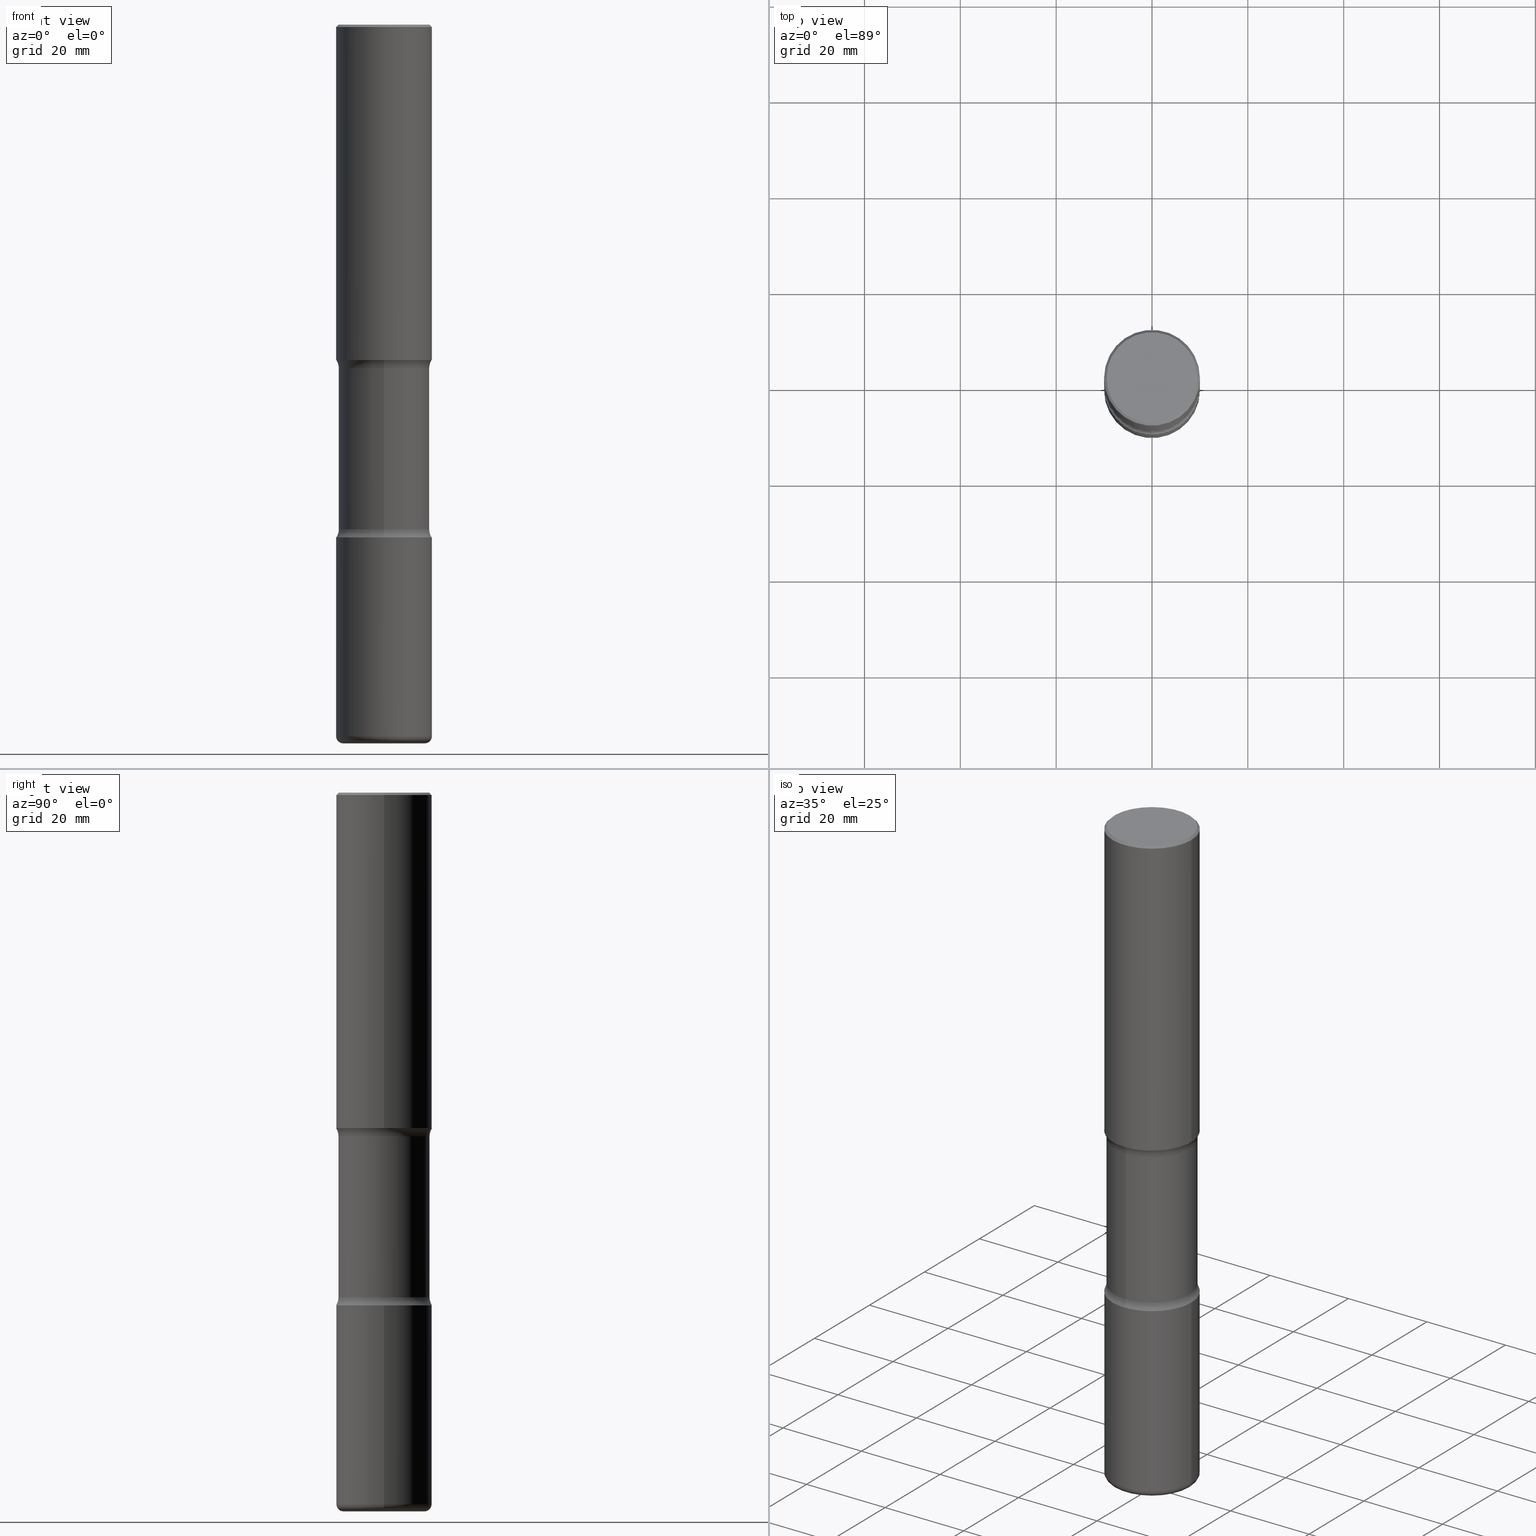
[diagram: canonical four-view strip — front | top / right | iso, engineering-drawing reading convention]
A machine part, canonical four-view strip (front | top / right | iso — engineering-drawing reading convention). The complete STEP part file that produces these views, byte-faithful:
ISO-10303-21;
HEADER;
FILE_DESCRIPTION (( 'STEP AP203' ),
    '1' );
FILE_NAME ('47746.STEP',
    '2024-03-02T08:24:06',
    ( '' ),
    ( '' ),
    'SwSTEP 2.0',
    'SolidWorks 2023',
    '' );
FILE_SCHEMA (( 'CONFIG_CONTROL_DESIGN' ));
ENDSEC;

DATA;
#1 = FACE_OUTER_BOUND ( 'NONE', #432, .T. ) ;
#2 = ORIENTED_EDGE ( 'NONE', *, *, #337, .T. ) ;
#3 = CARTESIAN_POINT ( 'NONE',  ( 1.444171603492631822E-28, -2.061894304653818881E-14, -5.905499999999998195 ) ) ;
#4 = EDGE_CURVE ( 'NONE', #389, #90, #452, .T. ) ;
#5 = DIRECTION ( 'NONE',  ( 1.000000000000000000, -6.982962677686266711E-15, 4.876176775795935793E-29 ) ) ;
#6 = VERTEX_POINT ( 'NONE', #187 ) ;
#7 = AXIS2_PLACEMENT_3D ( 'NONE', #374, #75, #71 ) ;
#8 = AXIS2_PLACEMENT_3D ( 'NONE', #256, #15, #366 ) ;
#9 = DIRECTION ( 'NONE',  ( 6.982962677686266711E-15, 1.000000000000000000, -2.921762560068729411E-15 ) ) ;
#10 = ORIENTED_EDGE ( 'NONE', *, *, #396, .T. ) ;
#11 = CARTESIAN_POINT ( 'NONE',  ( -2.633402156444536217E-15, -0.3740000000000101577, -2.823256588393413313 ) ) ;
#12 = EDGE_LOOP ( 'NONE', ( #23, #311, #248, #176 ) ) ;
#13 = ADVANCED_FACE ( 'NONE', ( #442 ), #178, .T. ) ;
#14 = ADVANCED_FACE ( 'NONE', ( #547 ), #172, .T. ) ;
#15 = DIRECTION ( 'NONE',  ( -2.445468806185136597E-29, 3.491481338843145583E-15, 1.000000000000000000 ) ) ;
#16 = ORIENTED_EDGE ( 'NONE', *, *, #285, .F. ) ;
#17 = AXIS2_PLACEMENT_3D ( 'NONE', #155, #196, #458 ) ;
#18 = AXIS2_PLACEMENT_3D ( 'NONE', #405, #22, #51 ) ;
#19 = DIRECTION ( 'NONE',  ( -6.982962677686264344E-15, -1.000000000000000000, 0.000000000000000000 ) ) ;
#20 = VERTEX_POINT ( 'NONE', #279 ) ;
#21 = EDGE_CURVE ( 'NONE', #106, #257, #94, .T. ) ;
#22 = DIRECTION ( 'NONE',  ( 2.499563752616943710E-29, -3.414014296659653741E-15, -1.000000000000000000 ) ) ;
#23 = ORIENTED_EDGE ( 'NONE', *, *, #87, .F. ) ;
#24 = FACE_OUTER_BOUND ( 'NONE', #264, .T. ) ;
#25 = DIRECTION ( 'NONE',  ( -2.445468806185136877E-29, 3.491481338843145188E-15, 1.000000000000000000 ) ) ;
#26 = CONICAL_SURFACE ( 'NONE', #430, 0.3936999999999999389, 0.7853981633974471688 ) ;
#27 = FACE_OUTER_BOUND ( 'NONE', #12, .T. ) ;
#28 = DIRECTION ( 'NONE',  ( 6.982962677686265922E-15, 1.000000000000000000, -3.414014296659653741E-15 ) ) ;
#29 = CARTESIAN_POINT ( 'NONE',  ( 2.609533152651356620E-15, 0.3736999999999999211, -1.300498063835582814E-15 ) ) ;
#30 = APPROVAL ( #149, 'UNSPECIFIED' ) ;
#31 = APPLICATION_PROTOCOL_DEFINITION ( 'international standard', 'config_control_design', 1994, #230 ) ;
#32 = CARTESIAN_POINT ( 'NONE',  ( -2.633402156444500718E-15, -0.3740000000000146541, -4.145243411606582384 ) ) ;
#33 = AXIS2_PLACEMENT_3D ( 'NONE', #297, #480, #252 ) ;
#34 = VECTOR ( 'NONE', #220, 39.37007874015748143 ) ;
#35 = COORDINATED_UNIVERSAL_TIME_OFFSET ( 5, 0, .BEHIND. ) ;
#36 = CARTESIAN_POINT ( 'NONE',  ( 0.3936999999999999389, -2.770807688499514945E-15, -0.02000000000000010103 ) ) ;
#37 = DIRECTION ( 'NONE',  ( 6.982962677686266711E-15, 1.000000000000000000, -2.921762560068729411E-15 ) ) ;
#38 = VERTEX_POINT ( 'NONE', #115 ) ;
#39 = DIRECTION ( 'NONE',  ( -1.000000000000000000, 6.982962677686265922E-15, -4.883557194083112340E-29 ) ) ;
#40 = CIRCLE ( 'NONE', #438, 0.3936999999999999389 ) ;
#41 = ORIENTED_EDGE ( 'NONE', *, *, #364, .T. ) ;
#42 = CC_DESIGN_APPROVAL ( #30, ( #165 ) ) ;
#43 = APPROVAL_DATE_TIME ( #88, #368 ) ;
#44 = DIRECTION ( 'NONE',  ( 2.438088387897960049E-29, -3.491481338843145188E-15, -1.000000000000000000 ) ) ;
#45 = EDGE_LOOP ( 'NONE', ( #145, #537, #223, #216 ) ) ;
#46 = CC_DESIGN_DATE_AND_TIME_ASSIGNMENT ( #474, #344, ( #104 ) ) ;
#47 = FACE_OUTER_BOUND ( 'NONE', #360, .T. ) ;
#48 = ORIENTED_EDGE ( 'NONE', *, *, #73, .F. ) ;
#49 = DIRECTION ( 'NONE',  ( 2.445468806185136597E-29, -3.491481338843145583E-15, -1.000000000000000000 ) ) ;
#50 = AXIS2_PLACEMENT_3D ( 'NONE', #534, #397, #445 ) ;
#51 = DIRECTION ( 'NONE',  ( 6.982962677686266711E-15, 1.000000000000000000, -2.921762560068729411E-15 ) ) ;
#52 = EDGE_CURVE ( 'NONE', #106, #219, #553, .T. ) ;
#53 = ORIENTED_EDGE ( 'NONE', *, *, #234, .T. ) ;
#54 = CARTESIAN_POINT ( 'NONE',  ( 0.3937000000000003830, -2.749192406205085978E-15, 1.919750796630861853E-29 ) ) ;
#55 = ORIENTED_EDGE ( 'NONE', *, *, #300, .T. ) ;
#56 = DIRECTION ( 'NONE',  ( 1.000000000000000000, -6.982962677686265133E-15, 0.000000000000000000 ) ) ;
#57 = VERTEX_POINT ( 'NONE', #70 ) ;
#58 = AXIS2_PLACEMENT_3D ( 'NONE', #339, #431, #247 ) ;
#59 = LOCAL_TIME ( 3, 24, 6.000000000000000000, #293 ) ;
#60 = LINE ( 'NONE', #310, #268 ) ;
#61 = CARTESIAN_POINT ( 'NONE',  ( -2.565826251166408560E-15, -0.3740000000000206493, -5.905499999999997307 ) ) ;
#62 = CARTESIAN_POINT ( 'NONE',  ( 1.429718882848077913E-28, -2.041259649941256157E-14, -5.846399999999999153 ) ) ;
#63 = ADVANCED_FACE ( 'NONE', ( #282 ), #428, .F. ) ;
#64 = ORIENTED_EDGE ( 'NONE', *, *, #447, .F. ) ;
#65 = DATE_AND_TIME ( #408, #69 ) ;
#66 = CARTESIAN_POINT ( 'NONE',  ( 6.739467482965614869E-29, -9.622173421717819657E-15, -2.755899999999998240 ) ) ;
#67 = AXIS2_PLACEMENT_3D ( 'NONE', #3, #44, #127 ) ;
#68 = DIRECTION ( 'NONE',  ( 0.7071067811865466846, -7.319954787623252890E-15, -0.7071067811865483499 ) ) ;
#69 = LOCAL_TIME ( 3, 24, 6.000000000000000000, #454 ) ;
#70 = CARTESIAN_POINT ( 'NONE',  ( -0.3937000000000003830, -1.761518974872504126E-14, -5.846399999999999153 ) ) ;
#71 = DIRECTION ( 'NONE',  ( -1.000000000000000000, 6.982962677686266711E-15, 0.000000000000000000 ) ) ;
#72 = CARTESIAN_POINT ( 'NONE',  ( -0.3736999999999999211, 2.644447966039788269E-15, 8.537024980182450727E-18 ) ) ;
#73 = EDGE_CURVE ( 'NONE', #304, #20, #181, .T. ) ;
#74 = CALENDAR_DATE ( 2024, 2, 3 ) ;
#75 = DIRECTION ( 'NONE',  ( 2.445468806185136597E-29, -3.491481338843145583E-15, -1.000000000000000000 ) ) ;
#76 = AXIS2_PLACEMENT_3D ( 'NONE', #62, #114, #147 ) ;
#77 = PERSON_AND_ORGANIZATION ( #100, #350 ) ;
#78 = DIRECTION ( 'NONE',  ( 6.982962677686265922E-15, 1.000000000000000000, -2.775563112689113540E-15 ) ) ;
#79 = EDGE_LOOP ( 'NONE', ( #140, #2 ) ) ;
#80 = CARTESIAN_POINT ( 'NONE',  ( 3.484498376165515577E-15, 0.4989999999999901736, -2.823256588393415534 ) ) ;
#81 = VERTEX_POINT ( 'NONE', #322 ) ;
#82 = APPROVAL_DATE_TIME ( #202, #273 ) ;
#83 = FACE_OUTER_BOUND ( 'NONE', #173, .T. ) ;
#84 = CLOSED_SHELL ( 'NONE', ( #472, #171, #305, #435, #543, #347, #63, #156 ) ) ;
#85 = ORIENTED_EDGE ( 'NONE', *, *, #354, .F. ) ;
#86 = AXIS2_PLACEMENT_3D ( 'NONE', #414, #318, #28 ) ;
#87 = EDGE_CURVE ( 'NONE', #251, #299, #206, .T. ) ;
#88 = DATE_AND_TIME ( #425, #208 ) ;
#89 = DIRECTION ( 'NONE',  ( 1.000000000000000000, -6.982962677686295110E-15, 0.000000000000000000 ) ) ;
#90 = VERTEX_POINT ( 'NONE', #32 ) ;
#91 = CARTESIAN_POINT ( 'NONE',  ( 1.444171603492631822E-28, -2.061894304653818881E-14, -5.905499999999998195 ) ) ;
#92 = CARTESIAN_POINT ( 'NONE',  ( 6.856494937320590076E-29, -9.925643892983175518E-15, -2.823256588393414201 ) ) ;
#93 = ORIENTED_EDGE ( 'NONE', *, *, #524, .F. ) ;
#94 = CIRCLE ( 'NONE', #307, 0.3937000000000002164 ) ;
#95 = AXIS2_PLACEMENT_3D ( 'NONE', #382, #319, #274 ) ;
#96 = AXIS2_PLACEMENT_3D ( 'NONE', #270, #329, #546 ) ;
#97 = CARTESIAN_POINT ( 'NONE',  ( -3.423388500887925735E-15, -0.4990000000000099356, -2.823256588393412425 ) ) ;
#98 = ORIENTED_EDGE ( 'NONE', *, *, #324, .F. ) ;
#99 = EDGE_LOOP ( 'NONE', ( #367, #253, #295, #470 ) ) ;
#100 = PERSON ( 'UNSPECIFIED', 'UNSPECIFIED', 'UNSPECIFIED', ('UNSPECIFIED'), ('UNSPECIFIED'), ('UNSPECIFIED') ) ;
#101 = DIRECTION ( 'NONE',  ( 2.499563752616943710E-29, -3.414014296659653741E-15, -1.000000000000000000 ) ) ;
#102 = VERTEX_POINT ( 'NONE', #72 ) ;
#103 = CC_DESIGN_PERSON_AND_ORGANIZATION_ASSIGNMENT ( #77, #471, ( #104 ) ) ;
#104 = SECURITY_CLASSIFICATION ( '', '', #283 ) ;
#105 = CARTESIAN_POINT ( 'NONE',  ( 0.3936999999999999389, -2.770807688499514945E-15, -0.02000000000000010103 ) ) ;
#106 = VERTEX_POINT ( 'NONE', #276 ) ;
#107 = CARTESIAN_POINT ( 'NONE',  ( 1.013706345712835491E-28, -1.447304001658688186E-14, -4.145243411606583273 ) ) ;
#108 = DIRECTION ( 'NONE',  ( 6.982962677686265922E-15, 1.000000000000000000, -2.775563112689113540E-15 ) ) ;
#109 = EDGE_CURVE ( 'NONE', #38, #6, #411, .T. ) ;
#110 = CIRCLE ( 'NONE', #267, 0.05909999999999972220 ) ;
#111 =( NAMED_UNIT ( * ) PLANE_ANGLE_UNIT ( ) SI_UNIT ( $, .RADIAN. ) );
#112 = AXIS2_PLACEMENT_3D ( 'NONE', #436, #179, #222 ) ;
#113 = DIRECTION ( 'NONE',  ( 6.982962677686266711E-15, 1.000000000000000000, -2.921762560068729411E-15 ) ) ;
#114 = DIRECTION ( 'NONE',  ( -2.445468806185136597E-29, 3.491481338843145583E-15, 1.000000000000000000 ) ) ;
#115 = CARTESIAN_POINT ( 'NONE',  ( -2.700978061722587749E-15, -0.3937000000000100419, -2.755899999999997352 ) ) ;
#116 = APPROVAL_STATUS ( 'not_yet_approved' ) ;
#117 = DIRECTION ( 'NONE',  ( 1.000000000000000000, -6.982962677686266711E-15, 0.000000000000000000 ) ) ;
#118 = VECTOR ( 'NONE', #212, 39.37007874015748143 ) ;
#119 = AXIS2_PLACEMENT_3D ( 'NONE', #312, #486, #56 ) ;
#120 = EDGE_LOOP ( 'NONE', ( #245, #535, #122, #490 ) ) ;
#121 = CARTESIAN_POINT ( 'NONE',  ( 1.030178189293550378E-28, -1.470821428801063089E-14, -4.212599999999998346 ) ) ;
#122 = ORIENTED_EDGE ( 'NONE', *, *, #324, .T. ) ;
#123 = PERSON_AND_ORGANIZATION_ROLE ( 'design_supplier' ) ;
#124 = CARTESIAN_POINT ( 'NONE',  ( -2.700978061722549884E-15, -0.3937000000000149269, -4.212599999999997458 ) ) ;
#125 = EDGE_CURVE ( 'NONE', #102, #126, #237, .T. ) ;
#126 = VERTEX_POINT ( 'NONE', #330 ) ;
#127 = DIRECTION ( 'NONE',  ( -1.000000000000000000, 6.982962677686265922E-15, -4.876176775795935793E-29 ) ) ;
#128 = AXIS2_PLACEMENT_3D ( 'NONE', #170, #469, #78 ) ;
#129 = EDGE_LOOP ( 'NONE', ( #558, #392 ) ) ;
#130 = AXIS2_PLACEMENT_3D ( 'NONE', #439, #265, #225 ) ;
#131 = LINE ( 'NONE', #385, #118 ) ;
#132 = LINE ( 'NONE', #54, #34 ) ;
#133 = ORIENTED_EDGE ( 'NONE', *, *, #52, .T. ) ;
#134 = CARTESIAN_POINT ( 'NONE',  ( 1.429718882848077913E-28, -2.041259649941256157E-14, -5.846399999999999153 ) ) ;
#135 = ORIENTED_EDGE ( 'NONE', *, *, #455, .F. ) ;
#136 = AXIS2_PLACEMENT_3D ( 'NONE', #29, #507, #154 ) ;
#137 = PRODUCT_DEFINITION_FORMATION_WITH_SPECIFIED_SOURCE ( 'ANY', '', #555, .NOT_KNOWN. ) ;
#138 = UNCERTAINTY_MEASURE_WITH_UNIT (LENGTH_MEASURE( 1.000000000000000082E-05 ), #460, 'distance_accuracy_value', 'NONE');
#139 = FACE_OUTER_BOUND ( 'NONE', #400, .T. ) ;
#140 = ORIENTED_EDGE ( 'NONE', *, *, #73, .T. ) ;
#141 = CARTESIAN_POINT ( 'NONE',  ( 3.484498376165549498E-15, 0.4989999999999857327, -4.145243411606585049 ) ) ;
#142 = ADVANCED_FACE ( 'NONE', ( #331 ), #410, .F. ) ;
#143 = ORIENTED_EDGE ( 'NONE', *, *, #232, .T. ) ;
#144 = DIRECTION ( 'NONE',  ( 1.000000000000000000, -6.982962677686269866E-15, 0.000000000000000000 ) ) ;
#145 = ORIENTED_EDGE ( 'NONE', *, *, #300, .F. ) ;
#146 = AXIS2_PLACEMENT_3D ( 'NONE', #498, #376, #272 ) ;
#147 = DIRECTION ( 'NONE',  ( 1.000000000000000000, -6.982962677686264344E-15, 4.883557194083112340E-29 ) ) ;
#148 = PLANE ( 'NONE',  #224 ) ;
#149 = APPROVAL_STATUS ( 'not_yet_approved' ) ;
#150 = DIRECTION ( 'NONE',  ( -2.445468806185136597E-29, 3.491481338843145583E-15, 1.000000000000000000 ) ) ;
#151 = DIMENSIONAL_EXPONENTS ( 1.000000000000000000, 0.000000000000000000, 0.000000000000000000, 0.000000000000000000, 0.000000000000000000, 0.000000000000000000, 0.000000000000000000 ) ;
#152 = CARTESIAN_POINT ( 'NONE',  ( 0.3937000000000001054, -2.749192406205084005E-15, 1.919750796630860452E-29 ) ) ;
#153 = APPROVAL_DATE_TIME ( #457, #30 ) ;
#154 = DIRECTION ( 'NONE',  ( -1.000000000000000000, 6.982962677686265922E-15, -4.876176775795935793E-29 ) ) ;
#155 = CARTESIAN_POINT ( 'NONE',  ( 1.013706345712835491E-28, -1.447304001658688186E-14, -4.145243411606583273 ) ) ;
#156 = ADVANCED_FACE ( 'NONE', ( #325 ), #409, .T. ) ;
#157 = MANIFOLD_SOLID_BREP ( 'Body-Move/Copy2[1]', #197 ) ;
#158 = DIRECTION ( 'NONE',  ( 2.499563752616943710E-29, -3.414014296659653741E-15, -1.000000000000000000 ) ) ;
#159 = ORIENTED_EDGE ( 'NONE', *, *, #228, .T. ) ;
#160 = CIRCLE ( 'NONE', #467, 0.3740000000000001656 ) ;
#161 = CARTESIAN_POINT ( 'NONE',  ( 0.3346000000000005081, -2.274909581136639345E-14, -5.846399999999999153 ) ) ;
#162 = TOROIDAL_SURFACE ( 'NONE', #387, 0.4990000000000000546, 0.1249999999999998612 ) ;
#163 = APPROVAL_PERSON_ORGANIZATION ( #539, #30, #198 ) ;
#164 = ORIENTED_EDGE ( 'NONE', *, *, #125, .T. ) ;
#165 = PRODUCT_DEFINITION ( 'UNKNOWN', '', #137, #479 ) ;
#166 = PLANE ( 'NONE',  #67 ) ;
#167 = VERTEX_POINT ( 'NONE', #240 ) ;
#168 = PERSON_AND_ORGANIZATION_ROLE ( 'creator' ) ;
#169 = CARTESIAN_POINT ( 'NONE',  ( -2.087702828670439639E-46, 2.980686340760894400E-32, 8.537024980200822558E-18 ) ) ;
#170 = CARTESIAN_POINT ( 'NONE',  ( 6.660667374498401538E-29, -9.735019662066511300E-15, -2.755899999999998240 ) ) ;
#171 = ADVANCED_FACE ( 'NONE', ( #27 ), #477, .F. ) ;
#172 = CONICAL_SURFACE ( 'NONE', #7, 0.3936999999999999389, 0.7853981633974471688 ) ;
#173 = EDGE_LOOP ( 'NONE', ( #302, #289, #427, #98 ) ) ;
#174 = CIRCLE ( 'NONE', #119, 0.3937000000000002164 ) ;
#175 = DIRECTION ( 'NONE',  ( -1.000000000000000000, 6.982962677686266711E-15, 0.000000000000000000 ) ) ;
#176 = ORIENTED_EDGE ( 'NONE', *, *, #396, .F. ) ;
#177 = DIRECTION ( 'NONE',  ( -1.000000000000000000, 6.982962677686265922E-15, -4.883557194083112340E-29 ) ) ;
#178 = CYLINDRICAL_SURFACE ( 'NONE', #327, 0.3937000000000001054 ) ;
#179 = DIRECTION ( 'NONE',  ( -2.445468806185136597E-29, 3.491481338843145583E-15, 1.000000000000000000 ) ) ;
#180 = VERTEX_POINT ( 'NONE', #200 ) ;
#181 = CIRCLE ( 'NONE', #296, 0.3937000000000002720 ) ;
#182 = AXIS2_PLACEMENT_3D ( 'NONE', #281, #462, #275 ) ;
#183 = DIRECTION ( 'NONE',  ( 1.000000000000000000, -6.982962677686264344E-15, 4.883557194083112340E-29 ) ) ;
#184 = ADVANCED_FACE ( 'NONE', ( #370 ), #148, .F. ) ;
#185 = ORIENTED_EDGE ( 'NONE', *, *, #228, .F. ) ;
#186 = DIRECTION ( 'NONE',  ( -2.445468806185136597E-29, 3.491481338843145583E-15, 1.000000000000000000 ) ) ;
#187 = CARTESIAN_POINT ( 'NONE',  ( 2.749192406205151847E-15, 0.3936999999999906685, -2.755899999999999572 ) ) ;
#188 = DATE_TIME_ROLE ( 'creation_date' ) ;
#189 = DIRECTION ( 'NONE',  ( 6.982962677686265922E-15, 1.000000000000000000, -3.414014296659653741E-15 ) ) ;
#190 = VECTOR ( 'NONE', #349, 39.37007874015748143 ) ;
#191 = AXIS2_PLACEMENT_3D ( 'NONE', #525, #258, #492 ) ;
#192 = CYLINDRICAL_SURFACE ( 'NONE', #550, 0.3937000000000003830 ) ;
#193 = DIRECTION ( 'NONE',  ( -2.438088387897960049E-29, 3.491481338843145188E-15, 1.000000000000000000 ) ) ;
#194 = EDGE_CURVE ( 'NONE', #292, #309, #529, .T. ) ;
#195 = DIRECTION ( 'NONE',  ( 6.982962677686265922E-15, 1.000000000000000000, -2.775563112689114723E-15 ) ) ;
#196 = DIRECTION ( 'NONE',  ( 2.499563752616943710E-29, -3.414014296659653741E-15, -1.000000000000000000 ) ) ;
#197 = CLOSED_SHELL ( 'NONE', ( #201, #513, #332, #345, #429, #320 ) ) ;
#198 = APPROVAL_ROLE ( '' ) ;
#199 = AXIS2_PLACEMENT_3D ( 'NONE', #395, #352, #9 ) ;
#200 = CARTESIAN_POINT ( 'NONE',  ( 2.611628041454766160E-15, 0.3739999999999856772, -4.145243411606584161 ) ) ;
#201 = ADVANCED_FACE ( 'NONE', ( #456 ), #192, .T. ) ;
#202 = DATE_AND_TIME ( #74, #468 ) ;
#203 = CARTESIAN_POINT ( 'NONE',  ( -0.3937000000000003830, 2.797406750687517153E-15, -1.936584745033358137E-29 ) ) ;
#204 = CARTESIAN_POINT ( 'NONE',  ( 4.890937612370298557E-31, -6.982962677686327354E-17, -0.02000000000000010103 ) ) ;
#205 = EDGE_CURVE ( 'NONE', #90, #180, #160, .T. ) ;
#206 = CIRCLE ( 'NONE', #394, 0.3937000000000002720 ) ;
#207 = DIRECTION ( 'NONE',  ( -6.982962677686268288E-15, -1.000000000000000000, 0.000000000000000000 ) ) ;
#208 = LOCAL_TIME ( 3, 24, 6.000000000000000000, #35 ) ;
#209 = EDGE_LOOP ( 'NONE', ( #424, #526, #185, #348 ) ) ;
#210 = DIRECTION ( 'NONE',  ( 6.982962677686265922E-15, 1.000000000000000000, -3.414014296659653741E-15 ) ) ;
#211 = ORIENTED_EDGE ( 'NONE', *, *, #362, .F. ) ;
#212 = DIRECTION ( 'NONE',  ( -2.445468806185136877E-29, 3.491481338843145188E-15, 1.000000000000000000 ) ) ;
#213 = ORIENTED_EDGE ( 'NONE', *, *, #538, .F. ) ;
#214 = FACE_OUTER_BOUND ( 'NONE', #343, .T. ) ;
#215 = CIRCLE ( 'NONE', #58, 0.3937000000000004940 ) ;
#216 = ORIENTED_EDGE ( 'NONE', *, *, #337, .F. ) ;
#217 = CC_DESIGN_APPROVAL ( #273, ( #104 ) ) ;
#218 = DIRECTION ( 'NONE',  ( 6.982962677686265922E-15, 1.000000000000000000, -3.414014296659653741E-15 ) ) ;
#219 = VERTEX_POINT ( 'NONE', #36 ) ;
#220 = DIRECTION ( 'NONE',  ( -2.445468806185136877E-29, 3.491481338843145188E-15, 1.000000000000000000 ) ) ;
#221 = ORIENTED_EDGE ( 'NONE', *, *, #524, .T. ) ;
#222 = DIRECTION ( 'NONE',  ( 1.000000000000000000, -6.982962677686266711E-15, 4.876212485538976239E-29 ) ) ;
#223 = ORIENTED_EDGE ( 'NONE', *, *, #489, .T. ) ;
#224 = AXIS2_PLACEMENT_3D ( 'NONE', #461, #193, #377 ) ;
#225 = DIRECTION ( 'NONE',  ( 6.860497997771527618E-15, 1.000000000000000000, 0.000000000000000000 ) ) ;
#226 = ORIENTED_EDGE ( 'NONE', *, *, #464, .F. ) ;
#227 = PERSON_AND_ORGANIZATION_ROLE ( 'creator' ) ;
#228 = EDGE_CURVE ( 'NONE', #167, #57, #215, .T. ) ;
#229 = EDGE_LOOP ( 'NONE', ( #434, #64, #164, #510 ) ) ;
#230 = APPLICATION_CONTEXT ( 'configuration controlled 3d designs of mechanical parts and assemblies' ) ;
#231 = CARTESIAN_POINT ( 'NONE',  ( 1.030178189293550378E-28, -1.470821428801063089E-14, -4.212599999999998346 ) ) ;
#232 = EDGE_CURVE ( 'NONE', #257, #126, #131, .T. ) ;
#233 = CARTESIAN_POINT ( 'NONE',  ( 6.660667374498401538E-29, -9.735019662066511300E-15, -2.755899999999998240 ) ) ;
#234 = EDGE_CURVE ( 'NONE', #487, #389, #484, .T. ) ;
#235 = CIRCLE ( 'NONE', #557, 0.1249999999999998335 ) ;
#236 = PLANE ( 'NONE',  #86 ) ;
#237 = LINE ( 'NONE', #415, #495 ) ;
#238 = CARTESIAN_POINT ( 'NONE',  ( 1.030178189293550378E-28, -1.470821428801063089E-14, -4.212599999999998346 ) ) ;
#239 =( LENGTH_UNIT ( ) NAMED_UNIT ( * ) SI_UNIT ( $, .METRE. ) );
#240 = CARTESIAN_POINT ( 'NONE',  ( 0.3937000000000003830, -2.316178890561765109E-14, -5.846399999999999153 ) ) ;
#241 = APPROVAL_PERSON_ORGANIZATION ( #243, #273, #465 ) ;
#242 = DIRECTION ( 'NONE',  ( -2.445468806185136597E-29, 3.491481338843145583E-15, 1.000000000000000000 ) ) ;
#243 = PERSON_AND_ORGANIZATION ( #100, #350 ) ;
#244 = CARTESIAN_POINT ( 'NONE',  ( 1.013341980608738414E-28, -1.447825793226129018E-14, -4.145243411606583273 ) ) ;
#245 = ORIENTED_EDGE ( 'NONE', *, *, #401, .F. ) ;
#246 = PERSON_AND_ORGANIZATION ( #100, #350 ) ;
#247 = DIRECTION ( 'NONE',  ( 1.000000000000000000, -6.982962677686269866E-15, 0.000000000000000000 ) ) ;
#248 = ORIENTED_EDGE ( 'NONE', *, *, #205, .T. ) ;
#249 = DIRECTION ( 'NONE',  ( -2.445468806185136597E-29, 3.491481338843145583E-15, 1.000000000000000000 ) ) ;
#250 = CIRCLE ( 'NONE', #18, 0.3740000000000001656 ) ;
#251 = VERTEX_POINT ( 'NONE', #124 ) ;
#252 = DIRECTION ( 'NONE',  ( 1.000000000000000000, -6.982962677686269077E-15, 0.000000000000000000 ) ) ;
#253 = ORIENTED_EDGE ( 'NONE', *, *, #441, .T. ) ;
#254 = ADVANCED_FACE ( 'NONE', ( #426 ), #333, .T. ) ;
#255 = CC_DESIGN_PERSON_AND_ORGANIZATION_ASSIGNMENT ( #552, #227, ( #165 ) ) ;
#256 = CARTESIAN_POINT ( 'NONE',  ( 0.000000000000000000, 0.000000000000000000, 0.000000000000000000 ) ) ;
#257 = VERTEX_POINT ( 'NONE', #481 ) ;
#258 = DIRECTION ( 'NONE',  ( 2.499563752616943710E-29, -3.414014296659653741E-15, -1.000000000000000000 ) ) ;
#259 = VECTOR ( 'NONE', #260, 39.37007874015748143 ) ;
#260 = DIRECTION ( 'NONE',  ( 2.499563752616943710E-29, -3.414014296659653741E-15, -1.000000000000000000 ) ) ;
#261 = CYLINDRICAL_SURFACE ( 'NONE', #199, 0.3740000000000001656 ) ;
#262 = ORIENTED_EDGE ( 'NONE', *, *, #418, .T. ) ;
#263 = PLANE ( 'NONE',  #50 ) ;
#264 = EDGE_LOOP ( 'NONE', ( #313, #523 ) ) ;
#265 = DIRECTION ( 'NONE',  ( 1.000000000000000000, -6.860497997771530774E-15, 4.841747577276637457E-29 ) ) ;
#266 = ORIENTED_EDGE ( 'NONE', *, *, #280, .F. ) ;
#267 = AXIS2_PLACEMENT_3D ( 'NONE', #161, #391, #89 ) ;
#268 = VECTOR ( 'NONE', #536, 39.37007874015748143 ) ;
#269 = EDGE_CURVE ( 'NONE', #6, #38, #371, .T. ) ;
#270 = CARTESIAN_POINT ( 'NONE',  ( 4.890937612370298557E-31, -6.982962677686327354E-17, -0.02000000000000010103 ) ) ;
#271 = ORIENTED_EDGE ( 'NONE', *, *, #489, .F. ) ;
#272 = DIRECTION ( 'NONE',  ( -1.000000000000000000, 7.105427357601025525E-15, 0.000000000000000000 ) ) ;
#273 = APPROVAL ( #516, 'UNSPECIFIED' ) ;
#274 = DIRECTION ( 'NONE',  ( 1.000000000000000000, -6.982962677686269866E-15, 0.000000000000000000 ) ) ;
#275 = DIRECTION ( 'NONE',  ( 1.000000000000000000, 0.000000000000000000, 0.000000000000000000 ) ) ;
#276 = CARTESIAN_POINT ( 'NONE',  ( 0.3937000000000002164, -1.237136582792290287E-14, -2.755899999999998240 ) ) ;
#277 = AXIS2_PLACEMENT_3D ( 'NONE', #301, #384, #522 ) ;
#278 =( GEOMETRIC_REPRESENTATION_CONTEXT ( 3 ) GLOBAL_UNCERTAINTY_ASSIGNED_CONTEXT ( ( #138 ) ) GLOBAL_UNIT_ASSIGNED_CONTEXT ( ( #460, #111, #369 ) ) REPRESENTATION_CONTEXT ( 'NONE', 'WORKASPACE' ) );
#279 = CARTESIAN_POINT ( 'NONE',  ( -0.3937000000000002720, -1.476299864302407750E-14, -4.212599999999998346 ) ) ;
#280 = EDGE_CURVE ( 'NONE', #219, #126, #40, .T. ) ;
#281 = CARTESIAN_POINT ( 'NONE',  ( 0.000000000000000000, 0.000000000000000000, 0.000000000000000000 ) ) ;
#282 = FACE_OUTER_BOUND ( 'NONE', #404, .T. ) ;
#283 = SECURITY_CLASSIFICATION_LEVEL ( 'unclassified' ) ;
#284 = DIRECTION ( 'NONE',  ( 2.499563752616943710E-29, -3.414014296659653741E-15, -1.000000000000000000 ) ) ;
#285 = EDGE_CURVE ( 'NONE', #81, #102, #380, .T. ) ;
#286 = AXIS2_PLACEMENT_3D ( 'NONE', #169, #249, #420 ) ;
#287 = AXIS2_PLACEMENT_3D ( 'NONE', #449, #186, #399 ) ;
#288 = DIRECTION ( 'NONE',  ( -2.445468806185136597E-29, 3.491481338843145583E-15, 1.000000000000000000 ) ) ;
#289 = ORIENTED_EDGE ( 'NONE', *, *, #401, .T. ) ;
#290 = PERSON_AND_ORGANIZATION ( #100, #350 ) ;
#291 = DIRECTION ( 'NONE',  ( 2.438088387897960049E-29, -3.491481338843145188E-15, -1.000000000000000000 ) ) ;
#292 = VERTEX_POINT ( 'NONE', #433 ) ;
#293 = COORDINATED_UNIVERSAL_TIME_OFFSET ( 5, 0, .BEHIND. ) ;
#294 = CARTESIAN_POINT ( 'NONE',  ( 6.856494937320590076E-29, -9.925643892983175518E-15, -2.823256588393414201 ) ) ;
#295 = ORIENTED_EDGE ( 'NONE', *, *, #354, .T. ) ;
#296 = AXIS2_PLACEMENT_3D ( 'NONE', #238, #463, #379 ) ;
#297 = CARTESIAN_POINT ( 'NONE',  ( 1.030178189293550378E-28, -1.470821428801063089E-14, -4.212599999999998346 ) ) ;
#298 = APPROVAL_PERSON_ORGANIZATION ( #246, #368, #508 ) ;
#299 = VERTEX_POINT ( 'NONE', #556 ) ;
#300 = EDGE_CURVE ( 'NONE', #57, #20, #388, .T. ) ;
#301 = CARTESIAN_POINT ( 'NONE',  ( 0.000000000000000000, 0.000000000000000000, 0.000000000000000000 ) ) ;
#302 = ORIENTED_EDGE ( 'NONE', *, *, #441, .F. ) ;
#303 = FACE_OUTER_BOUND ( 'NONE', #45, .T. ) ;
#304 = VERTEX_POINT ( 'NONE', #346 ) ;
#305 = ADVANCED_FACE ( 'NONE', ( #83 ), #358, .F. ) ;
#306 = DIRECTION ( 'NONE',  ( -2.445468806185136597E-29, 3.491481338843145583E-15, 1.000000000000000000 ) ) ;
#307 = AXIS2_PLACEMENT_3D ( 'NONE', #66, #419, #545 ) ;
#308 = CIRCLE ( 'NONE', #146, 0.05909999999999972220 ) ;
#309 = VERTEX_POINT ( 'NONE', #475 ) ;
#310 = CARTESIAN_POINT ( 'NONE',  ( 2.611628041454809941E-15, 0.3739999999999796820, -5.905499999999999972 ) ) ;
#311 = ORIENTED_EDGE ( 'NONE', *, *, #455, .T. ) ;
#312 = CARTESIAN_POINT ( 'NONE',  ( 6.739467482965614869E-29, -9.622173421717819657E-15, -2.755899999999998240 ) ) ;
#313 = ORIENTED_EDGE ( 'NONE', *, *, #269, .F. ) ;
#314 = EDGE_LOOP ( 'NONE', ( #533, #143, #266, #407 ) ) ;
#315 = AXIS2_PLACEMENT_3D ( 'NONE', #107, #505, #189 ) ;
#316 = AXIS2_PLACEMENT_3D ( 'NONE', #134, #306, #183 ) ;
#317 = EDGE_CURVE ( 'NONE', #292, #167, #110, .T. ) ;
#318 = DIRECTION ( 'NONE',  ( 2.499563752616943430E-29, -3.414014296659653741E-15, -1.000000000000000000 ) ) ;
#319 = DIRECTION ( 'NONE',  ( -2.445468806185136597E-29, 3.491481338843145583E-15, 1.000000000000000000 ) ) ;
#320 = ADVANCED_FACE ( 'NONE', ( #514 ), #519, .F. ) ;
#321 = PERSON_AND_ORGANIZATION ( #100, #350 ) ;
#322 = CARTESIAN_POINT ( 'NONE',  ( 0.3736999999999999211, -2.667287895133367964E-15, 8.537024980219274507E-18 ) ) ;
#323 = DIRECTION ( 'NONE',  ( 2.499563752616943710E-29, -3.414014296659653741E-15, -1.000000000000000000 ) ) ;
#324 = EDGE_CURVE ( 'NONE', #487, #6, #235, .T. ) ;
#325 = FACE_OUTER_BOUND ( 'NONE', #99, .T. ) ;
#326 = CC_DESIGN_PERSON_AND_ORGANIZATION_ASSIGNMENT ( #390, #123, ( #137 ) ) ;
#327 = AXIS2_PLACEMENT_3D ( 'NONE', #528, #150, #499 ) ;
#328 = CIRCLE ( 'NONE', #521, 0.1249999999999998335 ) ;
#329 = DIRECTION ( 'NONE',  ( -2.445468806185136597E-29, 3.491481338843145583E-15, 1.000000000000000000 ) ) ;
#330 = CARTESIAN_POINT ( 'NONE',  ( -0.3936999999999999389, 2.679362779428219524E-15, -0.02000000000000010103 ) ) ;
#331 = FACE_OUTER_BOUND ( 'NONE', #446, .T. ) ;
#332 = ADVANCED_FACE ( 'NONE', ( #1 ), #166, .T. ) ;
#333 = CYLINDRICAL_SURFACE ( 'NONE', #277, 0.3937000000000001054 ) ;
#334 = ORIENTED_EDGE ( 'NONE', *, *, #464, .T. ) ;
#335 = AXIS2_PLACEMENT_3D ( 'NONE', #121, #291, #473 ) ;
#336 = CLOSED_SHELL ( 'NONE', ( #13, #14, #448, #142, #184, #254 ) ) ;
#337 = EDGE_CURVE ( 'NONE', #20, #304, #386, .T. ) ;
#338 = CIRCLE ( 'NONE', #96, 0.3936999999999999389 ) ;
#339 = CARTESIAN_POINT ( 'NONE',  ( 1.429718882848077913E-28, -2.041259649941256157E-14, -5.846399999999999153 ) ) ;
#340 = ORIENTED_EDGE ( 'NONE', *, *, #285, .T. ) ;
#341 = COORDINATED_UNIVERSAL_TIME_OFFSET ( 5, 0, .BEHIND. ) ;
#342 = DIRECTION ( 'NONE',  ( 6.982962677686266711E-15, 1.000000000000000000, -2.921762560068729411E-15 ) ) ;
#343 = EDGE_LOOP ( 'NONE', ( #53, #444, #226, #85 ) ) ;
#344 = DATE_TIME_ROLE ( 'classification_date' ) ;
#345 = ADVANCED_FACE ( 'NONE', ( #47 ), #551, .T. ) ;
#346 = CARTESIAN_POINT ( 'NONE',  ( 0.3937000000000002720, -1.745740669421571411E-14, -4.212599999999998346 ) ) ;
#347 = ADVANCED_FACE ( 'NONE', ( #139 ), #263, .F. ) ;
#348 = ORIENTED_EDGE ( 'NONE', *, *, #317, .F. ) ;
#349 = DIRECTION ( 'NONE',  ( -2.445468806185136877E-29, 3.491481338843145188E-15, 1.000000000000000000 ) ) ;
#350 = ORGANIZATION ( 'UNSPECIFIED', 'UNSPECIFIED', '' ) ;
#351 = ORIENTED_EDGE ( 'NONE', *, *, #125, .F. ) ;
#352 = DIRECTION ( 'NONE',  ( 2.499563752616943710E-29, -3.414014296659653741E-15, -1.000000000000000000 ) ) ;
#353 = ORIENTED_EDGE ( 'NONE', *, *, #87, .T. ) ;
#354 = EDGE_CURVE ( 'NONE', #487, #180, #60, .T. ) ;
#355 = DIRECTION ( 'NONE',  ( -2.445468806185136597E-29, 3.491481338843145583E-15, 1.000000000000000000 ) ) ;
#356 = ORIENTED_EDGE ( 'NONE', *, *, #317, .T. ) ;
#357 = FACE_OUTER_BOUND ( 'NONE', #229, .T. ) ;
#358 = TOROIDAL_SURFACE ( 'NONE', #511, 0.4990000000000000546, 0.1249999999999998612 ) ;
#359 = CC_DESIGN_APPROVAL ( #368, ( #137 ) ) ;
#360 = EDGE_LOOP ( 'NONE', ( #213, #41, #356, #211 ) ) ;
#361 = MANIFOLD_SOLID_BREP ( 'Body-Move/Copy2[4]', #84 ) ;
#362 = EDGE_CURVE ( 'NONE', #57, #167, #485, .T. ) ;
#363 = CYLINDRICAL_SURFACE ( 'NONE', #8, 0.3937000000000003830 ) ;
#364 = EDGE_CURVE ( 'NONE', #309, #292, #372, .T. ) ;
#365 = EDGE_LOOP ( 'NONE', ( #16, #453, #437, #351 ) ) ;
#366 = DIRECTION ( 'NONE',  ( 1.000000000000000000, -6.982962677686266711E-15, 4.876176775795935793E-29 ) ) ;
#367 = ORIENTED_EDGE ( 'NONE', *, *, #4, .F. ) ;
#368 = APPROVAL ( #116, 'UNSPECIFIED' ) ;
#369 =( NAMED_UNIT ( * ) SI_UNIT ( $, .STERADIAN. ) SOLID_ANGLE_UNIT ( ) );
#370 = FACE_OUTER_BOUND ( 'NONE', #129, .T. ) ;
#371 = CIRCLE ( 'NONE', #128, 0.3937000000000004385 ) ;
#372 = CIRCLE ( 'NONE', #503, 0.3346000000000005081 ) ;
#373 = APPLICATION_PROTOCOL_DEFINITION ( 'international standard', 'config_control_design', 1994, #504 ) ;
#374 = CARTESIAN_POINT ( 'NONE',  ( 4.890937612370298557E-31, -6.982962677686327354E-17, -0.02000000000000010103 ) ) ;
#375 = CC_DESIGN_PERSON_AND_ORGANIZATION_ASSIGNMENT ( #321, #544, ( #555 ) ) ;
#376 = DIRECTION ( 'NONE',  ( 7.105427357601001859E-15, 1.000000000000000000, -3.491481338843145583E-15 ) ) ;
#377 = DIRECTION ( 'NONE',  ( 1.000000000000000000, -6.982962677686265922E-15, 4.876176775795935793E-29 ) ) ;
#378 = LENGTH_MEASURE_WITH_UNIT ( LENGTH_MEASURE( 0.02539999999999999897 ), #239 );
#379 = DIRECTION ( 'NONE',  ( 1.000000000000000000, -6.982962677686269077E-15, 0.000000000000000000 ) ) ;
#380 = CIRCLE ( 'NONE', #286, 0.3736999999999999211 ) ;
#381 = CIRCLE ( 'NONE', #112, 0.3736999999999999211 ) ;
#382 = CARTESIAN_POINT ( 'NONE',  ( 1.444171603492631822E-28, -2.061894304653818881E-14, -5.905499999999998195 ) ) ;
#383 = ADVANCED_BREP_SHAPE_REPRESENTATION ( '47746', ( #157, #560, #361, #182 ), #278 ) ;
#384 = DIRECTION ( 'NONE',  ( -2.445468806185136597E-29, 3.491481338843145583E-15, 1.000000000000000000 ) ) ;
#385 = CARTESIAN_POINT ( 'NONE',  ( -0.3937000000000001054, 2.797406750687515181E-15, -1.936584745033357016E-29 ) ) ;
#386 = CIRCLE ( 'NONE', #33, 0.3937000000000002720 ) ;
#387 = AXIS2_PLACEMENT_3D ( 'NONE', #92, #101, #218 ) ;
#388 = LINE ( 'NONE', #203, #190 ) ;
#389 = VERTEX_POINT ( 'NONE', #11 ) ;
#390 = PERSON_AND_ORGANIZATION ( #100, #350 ) ;
#391 = DIRECTION ( 'NONE',  ( -6.982962677686266711E-15, -1.000000000000000000, 3.491481338843145583E-15 ) ) ;
#392 = ORIENTED_EDGE ( 'NONE', *, *, #418, .F. ) ;
#393 = CARTESIAN_POINT ( 'NONE',  ( 0.000000000000000000, 0.000000000000000000, 0.000000000000000000 ) ) ;
#394 = AXIS2_PLACEMENT_3D ( 'NONE', #502, #284, #549 ) ;
#395 = CARTESIAN_POINT ( 'NONE',  ( 1.453329336974072664E-28, -2.048779909082575425E-14, -5.905499999999998195 ) ) ;
#396 = EDGE_CURVE ( 'NONE', #299, #180, #440, .T. ) ;
#397 = DIRECTION ( 'NONE',  ( -2.499563752616943430E-29, 3.414014296659653741E-15, 1.000000000000000000 ) ) ;
#398 = ORIENTED_EDGE ( 'NONE', *, *, #364, .F. ) ;
#399 = DIRECTION ( 'NONE',  ( 1.000000000000000000, -6.982962677686269866E-15, 0.000000000000000000 ) ) ;
#400 = EDGE_LOOP ( 'NONE', ( #221, #353 ) ) ;
#401 = EDGE_CURVE ( 'NONE', #389, #38, #328, .T. ) ;
#402 = DIRECTION ( 'NONE',  ( 1.000000000000000000, -6.860497997771530774E-15, 4.841747577276637457E-29 ) ) ;
#403 = VECTOR ( 'NONE', #25, 39.37007874015748143 ) ;
#404 = EDGE_LOOP ( 'NONE', ( #135, #93, #10, #334 ) ) ;
#405 = CARTESIAN_POINT ( 'NONE',  ( 1.013341980608738414E-28, -1.447825793226129018E-14, -4.145243411606583273 ) ) ;
#406 = PRODUCT_RELATED_PRODUCT_CATEGORY ( 'detail', '', ( #555 ) ) ;
#407 = ORIENTED_EDGE ( 'NONE', *, *, #52, .F. ) ;
#408 = CALENDAR_DATE ( 2024, 2, 3 ) ;
#409 = CYLINDRICAL_SURFACE ( 'NONE', #450, 0.3740000000000001656 ) ;
#410 = PLANE ( 'NONE',  #136 ) ;
#411 = CIRCLE ( 'NONE', #520, 0.3937000000000004385 ) ;
#412 = LOCAL_TIME ( 3, 24, 6.000000000000000000, #548 ) ;
#413 = VECTOR ( 'NONE', #68, 39.37007874015748143 ) ;
#414 = CARTESIAN_POINT ( 'NONE',  ( 6.739467482965614869E-29, -9.622173421717819657E-15, -2.755899999999998240 ) ) ;
#415 = CARTESIAN_POINT ( 'NONE',  ( -0.3936999999999999389, 2.679362779428219524E-15, -0.02000000000000010103 ) ) ;
#416 = FACE_OUTER_BOUND ( 'NONE', #209, .T. ) ;
#417 = CARTESIAN_POINT ( 'NONE',  ( 1.453329336974072664E-28, -2.048779909082575425E-14, -5.905499999999998195 ) ) ;
#418 = EDGE_CURVE ( 'NONE', #257, #106, #174, .T. ) ;
#419 = DIRECTION ( 'NONE',  ( -2.445468806185136597E-29, 3.491481338843145583E-15, 1.000000000000000000 ) ) ;
#420 = DIRECTION ( 'NONE',  ( 1.000000000000000000, -6.982962677686266711E-15, 4.876212485538976239E-29 ) ) ;
#421 = PRODUCT_DEFINITION_SHAPE ( 'NONE', 'NONE',  #165 ) ;
#422 = SHAPE_DEFINITION_REPRESENTATION ( #421, #383 ) ;
#423 = CARTESIAN_POINT ( 'NONE',  ( 6.829029461346524548E-29, -9.964976017815853586E-15, -2.823256588393414646 ) ) ;
#424 = ORIENTED_EDGE ( 'NONE', *, *, #194, .T. ) ;
#425 = CALENDAR_DATE ( 2024, 2, 3 ) ;
#426 = FACE_OUTER_BOUND ( 'NONE', #493, .T. ) ;
#427 = ORIENTED_EDGE ( 'NONE', *, *, #109, .T. ) ;
#428 = TOROIDAL_SURFACE ( 'NONE', #17, 0.4990000000000002212, 0.1249999999999998751 ) ;
#429 = ADVANCED_FACE ( 'NONE', ( #303 ), #363, .T. ) ;
#430 = AXIS2_PLACEMENT_3D ( 'NONE', #531, #49, #175 ) ;
#431 = DIRECTION ( 'NONE',  ( -2.445468806185136597E-29, 3.491481338843145583E-15, 1.000000000000000000 ) ) ;
#432 = EDGE_LOOP ( 'NONE', ( #515, #398 ) ) ;
#433 = CARTESIAN_POINT ( 'NONE',  ( 0.3346000000000005081, -2.295544235849201754E-14, -5.905499999999998195 ) ) ;
#434 = ORIENTED_EDGE ( 'NONE', *, *, #506, .F. ) ;
#435 = ADVANCED_FACE ( 'NONE', ( #482 ), #162, .F. ) ;
#436 = CARTESIAN_POINT ( 'NONE',  ( -2.087702828670439639E-46, 2.980686340760894400E-32, 8.537024980200822558E-18 ) ) ;
#437 = ORIENTED_EDGE ( 'NONE', *, *, #280, .T. ) ;
#438 = AXIS2_PLACEMENT_3D ( 'NONE', #204, #242, #117 ) ;
#439 = CARTESIAN_POINT ( 'NONE',  ( -3.423388500887893787E-15, -0.4990000000000146541, -4.145243411606581496 ) ) ;
#440 = CIRCLE ( 'NONE', #530, 0.1249999999999999029 ) ;
#441 = EDGE_CURVE ( 'NONE', #389, #487, #512, .T. ) ;
#442 = FACE_OUTER_BOUND ( 'NONE', #314, .T. ) ;
#443 = CARTESIAN_POINT ( 'NONE',  ( 2.611628041454733028E-15, 0.3739999999999901736, -2.823256588393415534 ) ) ;
#444 = ORIENTED_EDGE ( 'NONE', *, *, #4, .T. ) ;
#445 = DIRECTION ( 'NONE',  ( -6.982962677686265922E-15, -1.000000000000000000, 3.414014296659653741E-15 ) ) ;
#446 = EDGE_LOOP ( 'NONE', ( #497, #340 ) ) ;
#447 = EDGE_CURVE ( 'NONE', #102, #81, #381, .T. ) ;
#448 = ADVANCED_FACE ( 'NONE', ( #357 ), #26, .T. ) ;
#449 = CARTESIAN_POINT ( 'NONE',  ( 1.429718882848077913E-28, -2.041259649941256157E-14, -5.846399999999999153 ) ) ;
#450 = AXIS2_PLACEMENT_3D ( 'NONE', #417, #466, #113 ) ;
#451 = AXIS2_PLACEMENT_3D ( 'NONE', #231, #323, #195 ) ;
#452 = LINE ( 'NONE', #61, #259 ) ;
#453 = ORIENTED_EDGE ( 'NONE', *, *, #506, .T. ) ;
#454 = COORDINATED_UNIVERSAL_TIME_OFFSET ( 5, 0, .BEHIND. ) ;
#455 = EDGE_CURVE ( 'NONE', #251, #90, #459, .T. ) ;
#456 = FACE_OUTER_BOUND ( 'NONE', #518, .T. ) ;
#457 = DATE_AND_TIME ( #500, #412 ) ;
#458 = DIRECTION ( 'NONE',  ( 6.982962677686265922E-15, 1.000000000000000000, -3.414014296659653741E-15 ) ) ;
#459 = CIRCLE ( 'NONE', #130, 0.1249999999999999029 ) ;
#460 =( CONVERSION_BASED_UNIT ( 'INCH', #378 ) LENGTH_UNIT ( ) NAMED_UNIT ( #151 ) );
#461 = CARTESIAN_POINT ( 'NONE',  ( 6.739467482965614869E-29, -9.622173421717819657E-15, -2.755899999999998240 ) ) ;
#462 = DIRECTION ( 'NONE',  ( 0.000000000000000000, 0.000000000000000000, 1.000000000000000000 ) ) ;
#463 = DIRECTION ( 'NONE',  ( -2.445468806185136597E-29, 3.491481338843145583E-15, 1.000000000000000000 ) ) ;
#464 = EDGE_CURVE ( 'NONE', #180, #90, #250, .T. ) ;
#465 = APPROVAL_ROLE ( '' ) ;
#466 = DIRECTION ( 'NONE',  ( 2.499563752616943710E-29, -3.414014296659653741E-15, -1.000000000000000000 ) ) ;
#467 = AXIS2_PLACEMENT_3D ( 'NONE', #244, #517, #37 ) ;
#468 = LOCAL_TIME ( 3, 24, 6.000000000000000000, #341 ) ;
#469 = DIRECTION ( 'NONE',  ( 2.499563752616943710E-29, -3.414014296659653741E-15, -1.000000000000000000 ) ) ;
#470 = ORIENTED_EDGE ( 'NONE', *, *, #205, .F. ) ;
#471 = PERSON_AND_ORGANIZATION_ROLE ( 'classification_officer' ) ;
#472 = ADVANCED_FACE ( 'NONE', ( #214 ), #261, .T. ) ;
#473 = DIRECTION ( 'NONE',  ( -1.000000000000000000, 6.982962677686265922E-15, -4.876176775795935793E-29 ) ) ;
#474 = DATE_AND_TIME ( #478, #59 ) ;
#475 = CARTESIAN_POINT ( 'NONE',  ( -0.3346000000000005081, -1.792832840070497055E-14, -5.905499999999998195 ) ) ;
#476 = ORIENTED_EDGE ( 'NONE', *, *, #232, .F. ) ;
#477 = TOROIDAL_SURFACE ( 'NONE', #315, 0.4990000000000002212, 0.1249999999999998751 ) ;
#478 = CALENDAR_DATE ( 2024, 2, 3 ) ;
#479 = DESIGN_CONTEXT ( 'detailed design', #230, 'design' ) ;
#480 = DIRECTION ( 'NONE',  ( -2.445468806185136597E-29, 3.491481338843145583E-15, 1.000000000000000000 ) ) ;
#481 = CARTESIAN_POINT ( 'NONE',  ( -0.3937000000000002720, -2.048594773559823141E-15, -2.755899999999998240 ) ) ;
#482 = FACE_OUTER_BOUND ( 'NONE', #120, .T. ) ;
#483 = ORIENTED_EDGE ( 'NONE', *, *, #554, .F. ) ;
#484 = CIRCLE ( 'NONE', #540, 0.3740000000000001656 ) ;
#485 = CIRCLE ( 'NONE', #287, 0.3937000000000004940 ) ;
#486 = DIRECTION ( 'NONE',  ( -2.445468806185136597E-29, 3.491481338843145583E-15, 1.000000000000000000 ) ) ;
#487 = VERTEX_POINT ( 'NONE', #443 ) ;
#488 = LINE ( 'NONE', #105, #413 ) ;
#489 = EDGE_CURVE ( 'NONE', #167, #304, #132, .T. ) ;
#490 = ORIENTED_EDGE ( 'NONE', *, *, #269, .T. ) ;
#491 = CC_DESIGN_PERSON_AND_ORGANIZATION_ASSIGNMENT ( #290, #168, ( #137 ) ) ;
#492 = DIRECTION ( 'NONE',  ( 6.982962677686266711E-15, 1.000000000000000000, -2.921762560068729411E-15 ) ) ;
#493 = EDGE_LOOP ( 'NONE', ( #476, #262, #133, #483 ) ) ;
#494 = MECHANICAL_CONTEXT ( 'NONE', #504, 'mechanical' ) ;
#495 = VECTOR ( 'NONE', #542, 39.37007874015748143 ) ;
#496 = TOROIDAL_SURFACE ( 'NONE', #76, 0.3346000000000005081, 0.05909999999999968751 ) ;
#497 = ORIENTED_EDGE ( 'NONE', *, *, #447, .T. ) ;
#498 = CARTESIAN_POINT ( 'NONE',  ( -0.3346000000000005081, -1.803512050555926628E-14, -5.846399999999999153 ) ) ;
#499 = DIRECTION ( 'NONE',  ( 1.000000000000000000, -6.982962677686266711E-15, 4.876176775795935793E-29 ) ) ;
#500 = CALENDAR_DATE ( 2024, 2, 3 ) ;
#501 = DIRECTION ( 'NONE',  ( 2.499563752616943710E-29, -3.414014296659653741E-15, -1.000000000000000000 ) ) ;
#502 = CARTESIAN_POINT ( 'NONE',  ( 1.030178189293550378E-28, -1.470821428801063089E-14, -4.212599999999998346 ) ) ;
#503 = AXIS2_PLACEMENT_3D ( 'NONE', #91, #355, #144 ) ;
#504 = APPLICATION_CONTEXT ( 'configuration controlled 3d designs of mechanical parts and assemblies' ) ;
#505 = DIRECTION ( 'NONE',  ( 2.499563752616943710E-29, -3.414014296659653741E-15, -1.000000000000000000 ) ) ;
#506 = EDGE_CURVE ( 'NONE', #81, #219, #488, .T. ) ;
#507 = DIRECTION ( 'NONE',  ( 2.438088387897960049E-29, -3.491481338843145188E-15, -1.000000000000000000 ) ) ;
#508 = APPROVAL_ROLE ( '' ) ;
#509 = DIRECTION ( 'NONE',  ( 2.499563752616943710E-29, -3.414014296659653741E-15, -1.000000000000000000 ) ) ;
#510 = ORIENTED_EDGE ( 'NONE', *, *, #554, .T. ) ;
#511 = AXIS2_PLACEMENT_3D ( 'NONE', #294, #158, #210 ) ;
#512 = CIRCLE ( 'NONE', #191, 0.3740000000000001656 ) ;
#513 = ADVANCED_FACE ( 'NONE', ( #416 ), #496, .T. ) ;
#514 = FACE_OUTER_BOUND ( 'NONE', #79, .T. ) ;
#515 = ORIENTED_EDGE ( 'NONE', *, *, #194, .F. ) ;
#516 = APPROVAL_STATUS ( 'not_yet_approved' ) ;
#517 = DIRECTION ( 'NONE',  ( 2.499563752616943710E-29, -3.414014296659653741E-15, -1.000000000000000000 ) ) ;
#518 = EDGE_LOOP ( 'NONE', ( #159, #55, #48, #271 ) ) ;
#519 = PLANE ( 'NONE',  #335 ) ;
#520 = AXIS2_PLACEMENT_3D ( 'NONE', #233, #501, #108 ) ;
#521 = AXIS2_PLACEMENT_3D ( 'NONE', #97, #402, #527 ) ;
#522 = DIRECTION ( 'NONE',  ( 1.000000000000000000, -6.982962677686266711E-15, 4.876176775795935793E-29 ) ) ;
#523 = ORIENTED_EDGE ( 'NONE', *, *, #109, .F. ) ;
#524 = EDGE_CURVE ( 'NONE', #299, #251, #559, .T. ) ;
#525 = CARTESIAN_POINT ( 'NONE',  ( 6.829029461346524548E-29, -9.964976017815853586E-15, -2.823256588393414646 ) ) ;
#526 = ORIENTED_EDGE ( 'NONE', *, *, #538, .T. ) ;
#527 = DIRECTION ( 'NONE',  ( 6.860497997771531562E-15, 1.000000000000000000, 0.000000000000000000 ) ) ;
#528 = CARTESIAN_POINT ( 'NONE',  ( 0.000000000000000000, 0.000000000000000000, 0.000000000000000000 ) ) ;
#529 = CIRCLE ( 'NONE', #95, 0.3346000000000005081 ) ;
#530 = AXIS2_PLACEMENT_3D ( 'NONE', #141, #177, #19 ) ;
#531 = CARTESIAN_POINT ( 'NONE',  ( 4.890937612370298557E-31, -6.982962677686327354E-17, -0.02000000000000010103 ) ) ;
#532 = CC_DESIGN_DATE_AND_TIME_ASSIGNMENT ( #65, #188, ( #165 ) ) ;
#533 = ORIENTED_EDGE ( 'NONE', *, *, #21, .T. ) ;
#534 = CARTESIAN_POINT ( 'NONE',  ( 1.030178189293550378E-28, -1.470821428801063089E-14, -4.212599999999998346 ) ) ;
#535 = ORIENTED_EDGE ( 'NONE', *, *, #234, .F. ) ;
#536 = DIRECTION ( 'NONE',  ( 2.499563752616943710E-29, -3.414014296659653741E-15, -1.000000000000000000 ) ) ;
#537 = ORIENTED_EDGE ( 'NONE', *, *, #362, .T. ) ;
#538 = EDGE_CURVE ( 'NONE', #309, #57, #308, .T. ) ;
#539 = PERSON_AND_ORGANIZATION ( #100, #350 ) ;
#540 = AXIS2_PLACEMENT_3D ( 'NONE', #423, #509, #342 ) ;
#541 = CC_DESIGN_SECURITY_CLASSIFICATION ( #104, ( #137 ) ) ;
#542 = DIRECTION ( 'NONE',  ( -0.7071067811865466846, 2.468850131082247989E-15, -0.7071067811865483499 ) ) ;
#543 = ADVANCED_FACE ( 'NONE', ( #24 ), #236, .F. ) ;
#544 = PERSON_AND_ORGANIZATION_ROLE ( 'design_owner' ) ;
#545 = DIRECTION ( 'NONE',  ( 1.000000000000000000, -6.982962677686265133E-15, 0.000000000000000000 ) ) ;
#546 = DIRECTION ( 'NONE',  ( 1.000000000000000000, -6.982962677686266711E-15, 0.000000000000000000 ) ) ;
#547 = FACE_OUTER_BOUND ( 'NONE', #365, .T. ) ;
#548 = COORDINATED_UNIVERSAL_TIME_OFFSET ( 5, 0, .BEHIND. ) ;
#549 = DIRECTION ( 'NONE',  ( 6.982962677686265922E-15, 1.000000000000000000, -2.775563112689114723E-15 ) ) ;
#550 = AXIS2_PLACEMENT_3D ( 'NONE', #393, #288, #5 ) ;
#551 = TOROIDAL_SURFACE ( 'NONE', #316, 0.3346000000000005081, 0.05909999999999968751 ) ;
#552 = PERSON_AND_ORGANIZATION ( #100, #350 ) ;
#553 = LINE ( 'NONE', #152, #403 ) ;
#554 = EDGE_CURVE ( 'NONE', #126, #219, #338, .T. ) ;
#555 = PRODUCT ( '47746', '47746', '', ( #494 ) ) ;
#556 = CARTESIAN_POINT ( 'NONE',  ( 2.749192406205187346E-15, 0.3936999999999854505, -4.212600000000000122 ) ) ;
#557 = AXIS2_PLACEMENT_3D ( 'NONE', #80, #39, #207 ) ;
#558 = ORIENTED_EDGE ( 'NONE', *, *, #21, .F. ) ;
#559 = CIRCLE ( 'NONE', #451, 0.3937000000000002720 ) ;
#560 = MANIFOLD_SOLID_BREP ( 'Body-Move/Copy2[2]', #336 ) ;
ENDSEC;
END-ISO-10303-21;
